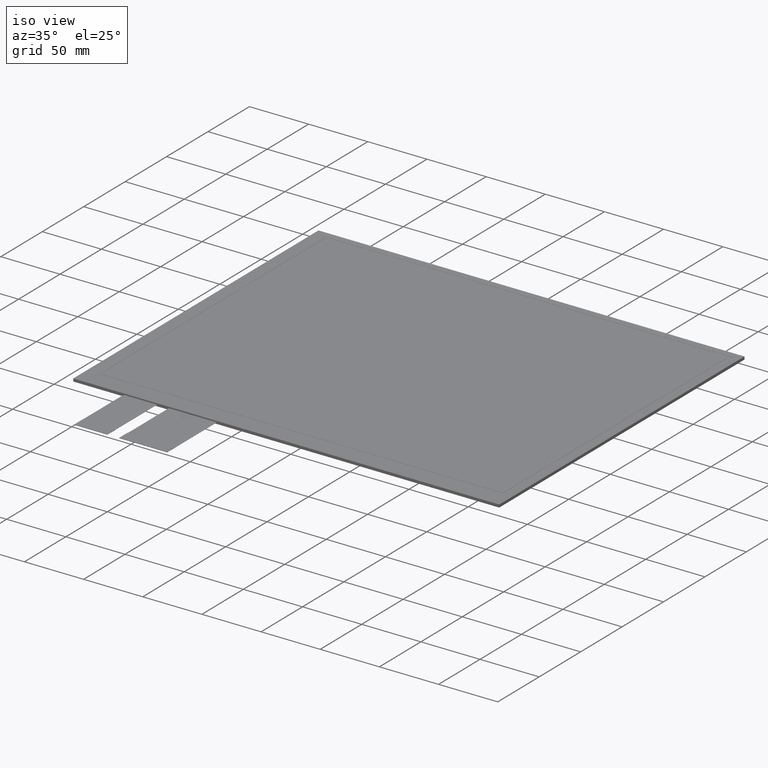
[diagram: clean part render]
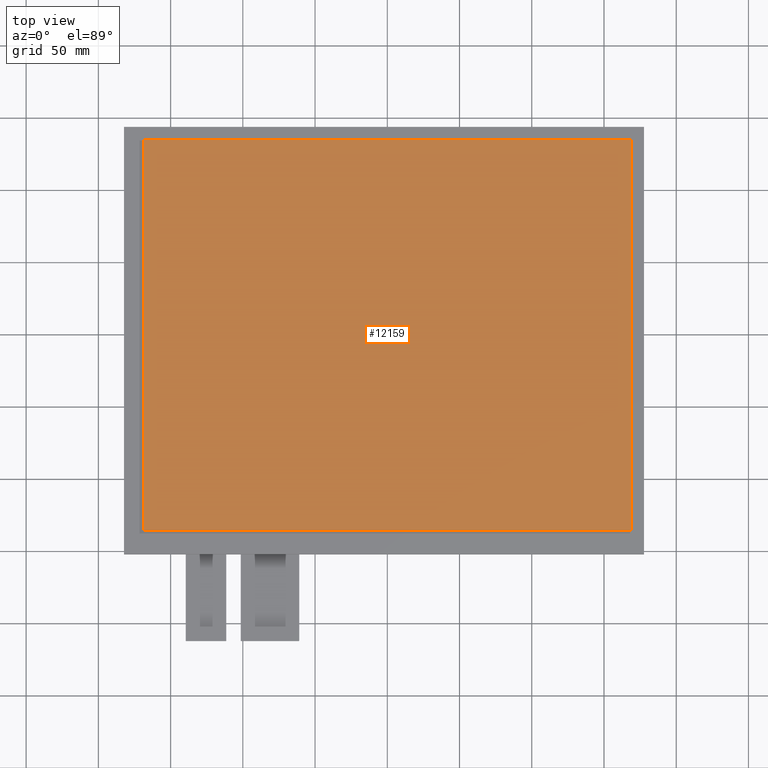
[diagram: tour spotlight — one face highlighted and labeled with its STEP entity id]
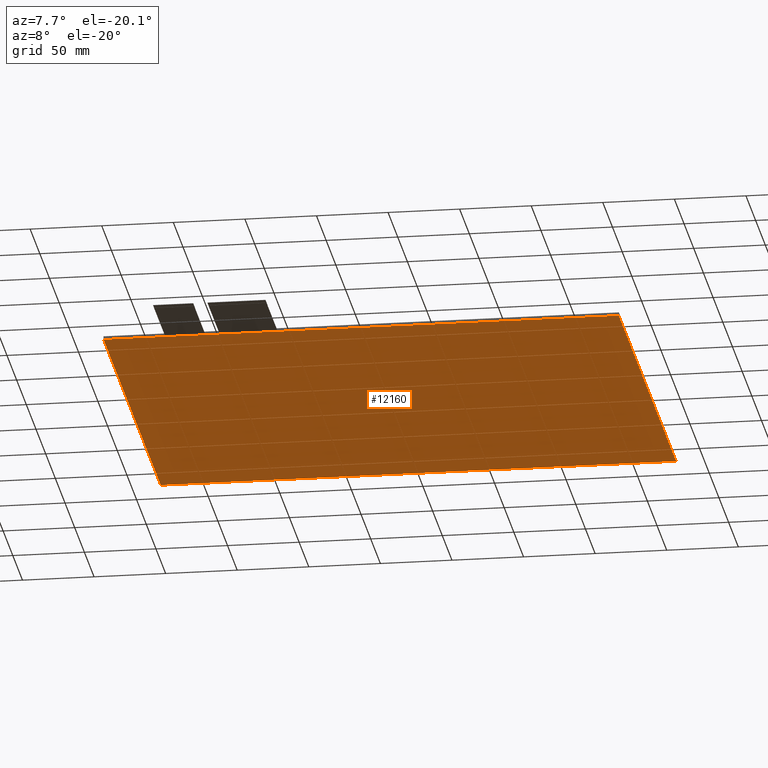
[diagram: tour spotlight — one face highlighted and labeled with its STEP entity id]
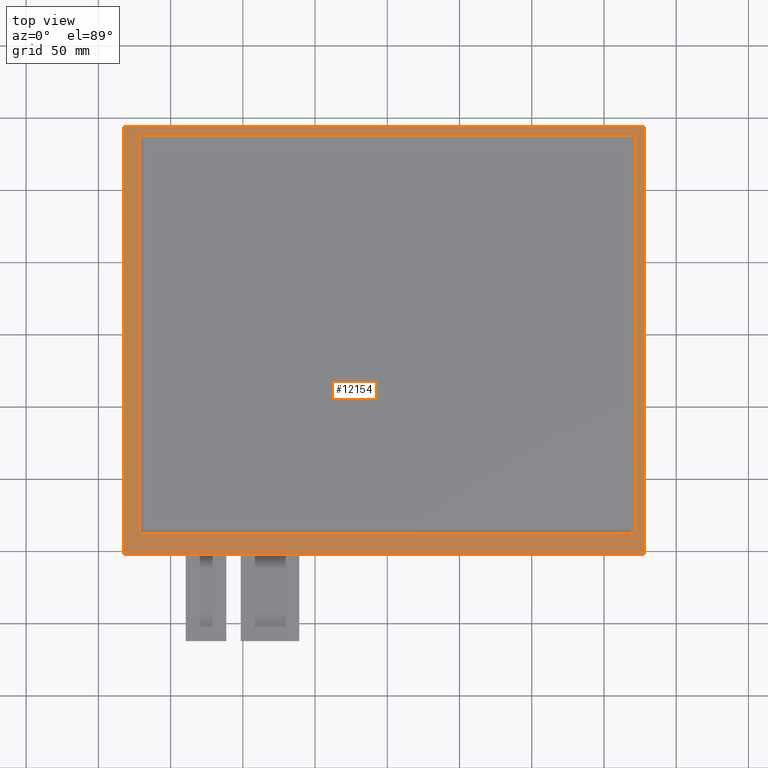
[diagram: tour spotlight — one face highlighted and labeled with its STEP entity id]
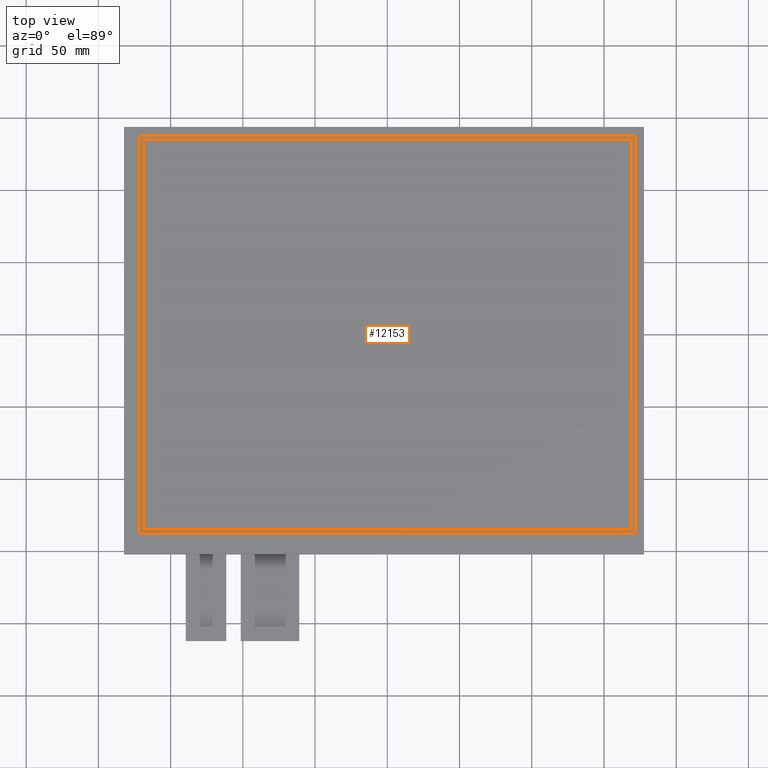
[diagram: tour spotlight — one face highlighted and labeled with its STEP entity id]
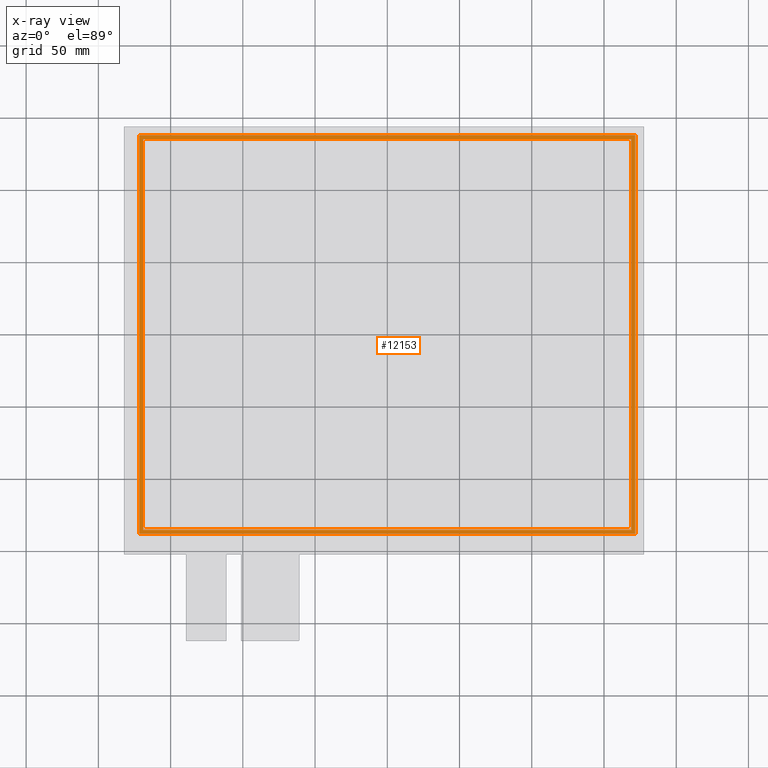
[diagram: x-ray of the same camera — body ghosted, this tour face saturated]
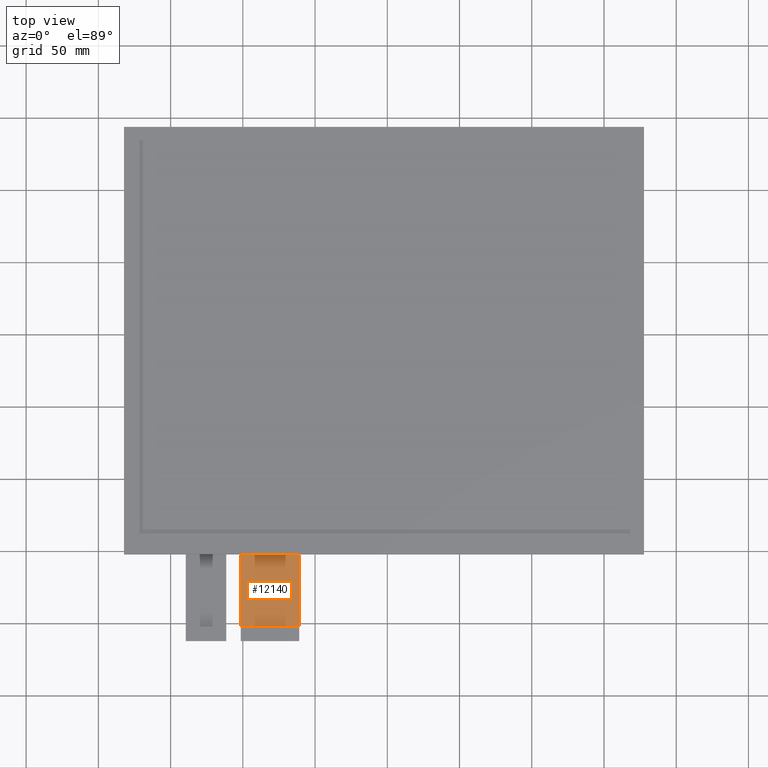
[diagram: tour spotlight — one face highlighted and labeled with its STEP entity id]
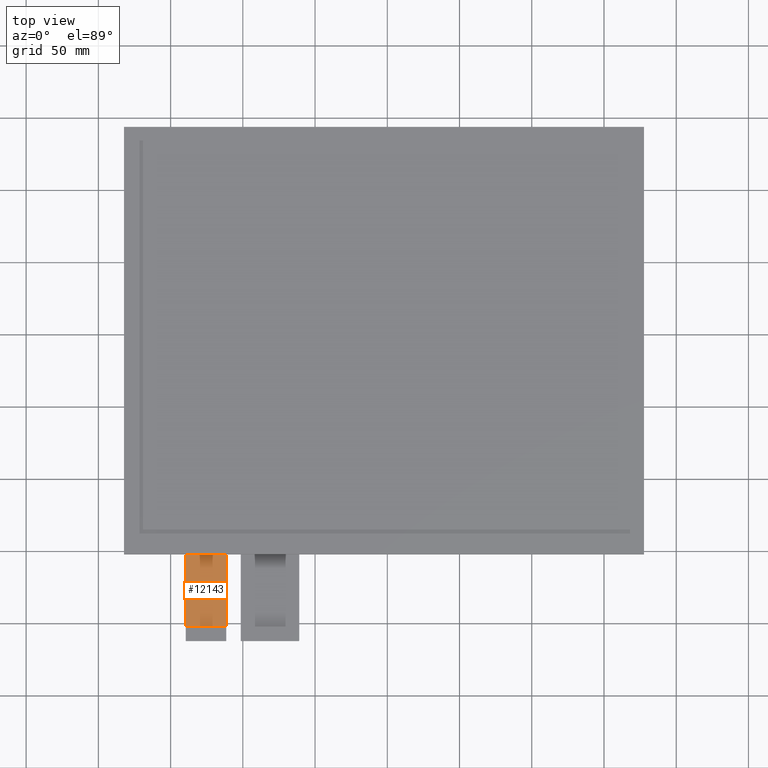
[diagram: tour spotlight — one face highlighted and labeled with its STEP entity id]
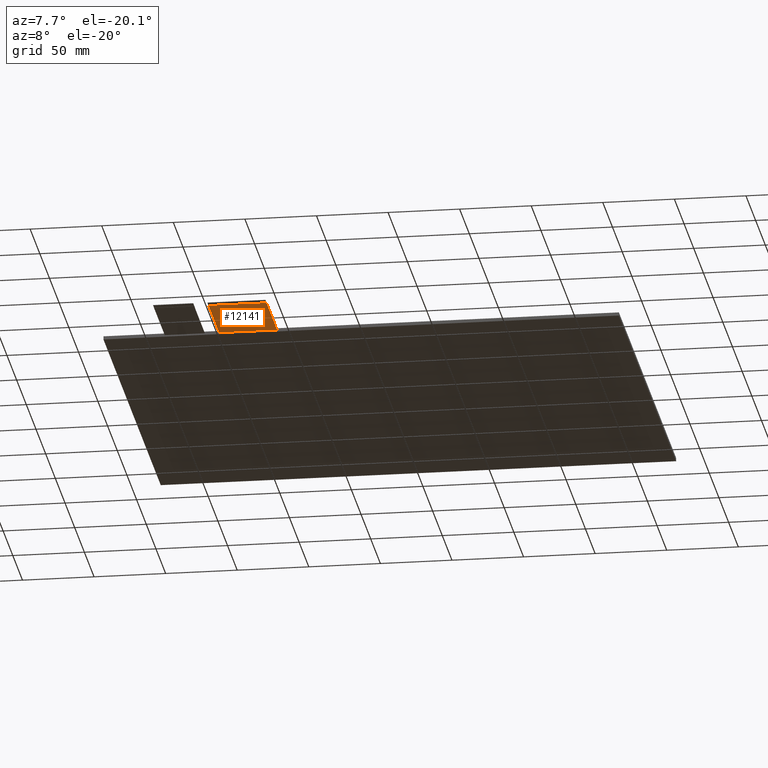
[diagram: tour spotlight — one face highlighted and labeled with its STEP entity id]
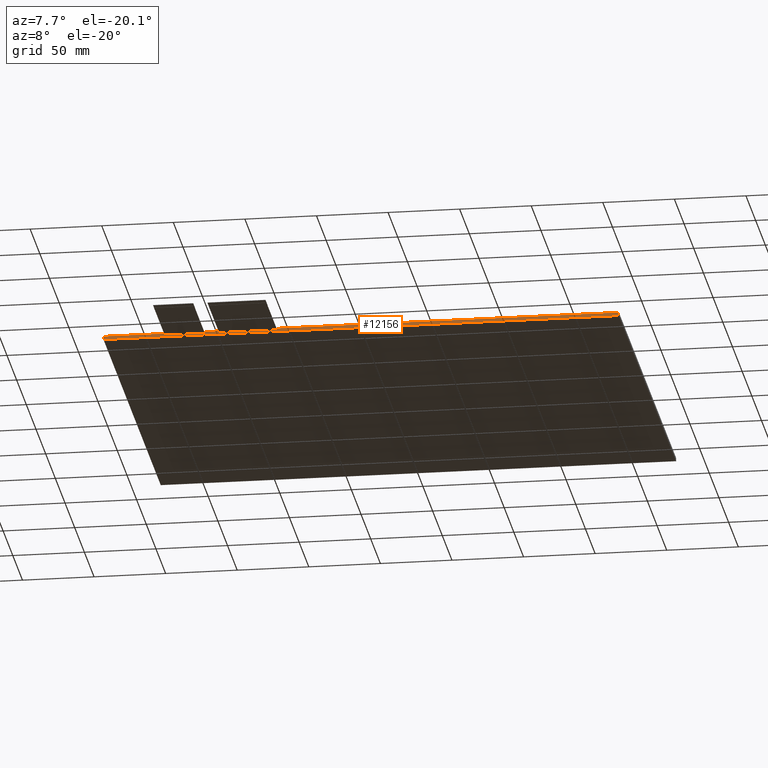
[diagram: tour spotlight — one face highlighted and labeled with its STEP entity id]
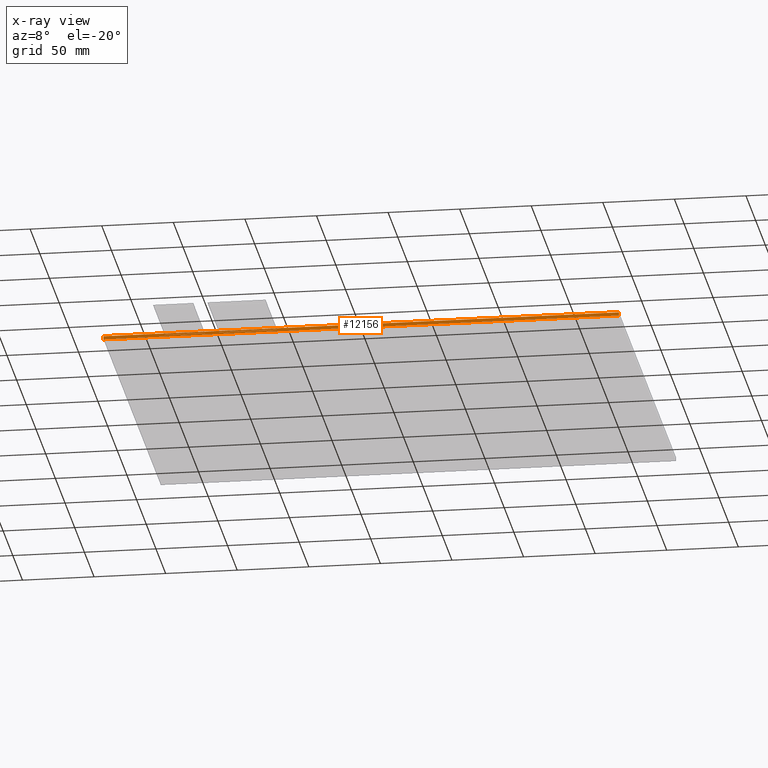
[diagram: x-ray of the same camera — body ghosted, this tour face saturated]
A machine part: a face-by-face anatomy tour. The part has 578 B-rep faces; the first image is the clean iso view, then the 8 largest visible faces are spotlighted one at a time (largest first), each with its STEP entity span.

Face 1 — top view, entity #12159. In plain terms, the highlighted planar face has unit normal (0, 0, 1).
Definition (entity closure, byte-faithful):
#701=PLANE('',#12765);
#1279=FACE_OUTER_BOUND('',#1861,.T.);
#1861=EDGE_LOOP('',(#11571,#11572,#11573,#11574));
#3535=LINE('',#19015,#5243);
#3539=LINE('',#19023,#5247);
#3542=LINE('',#19029,#5250);
#3545=LINE('',#19034,#5253);
#5243=VECTOR('',#15583,10.);
#5247=VECTOR('',#15589,10.);
#5250=VECTOR('',#15594,10.);
#5253=VECTOR('',#15599,10.);
#6407=VERTEX_POINT('',#19013);
#6408=VERTEX_POINT('',#19014);
#6411=VERTEX_POINT('',#19022);
#6413=VERTEX_POINT('',#19028);
#8111=EDGE_CURVE('',#6407,#6408,#3535,.T.);
#8115=EDGE_CURVE('',#6411,#6407,#3539,.T.);
#8118=EDGE_CURVE('',#6413,#6411,#3542,.T.);
#8121=EDGE_CURVE('',#6408,#6413,#3545,.T.);
#11571=ORIENTED_EDGE('',*,*,#8111,.T.);
#11572=ORIENTED_EDGE('',*,*,#8121,.T.);
#11573=ORIENTED_EDGE('',*,*,#8118,.T.);
#11574=ORIENTED_EDGE('',*,*,#8115,.T.);
#12159=ADVANCED_FACE('',(#1279),#701,.T.);
#12765=AXIS2_PLACEMENT_3D('',#19086,#15645,#15646);
#15583=DIRECTION('',(1.,0.,0.));
#15589=DIRECTION('',(0.,-1.,0.));
#15594=DIRECTION('',(-1.,0.,0.));
#15599=DIRECTION('',(0.,1.,0.));
#15645=DIRECTION('center_axis',(0.,0.,1.));
#15646=DIRECTION('ref_axis',(1.,0.,0.));
#19013=CARTESIAN_POINT('',(-169.,-135.2,0.));
#19014=CARTESIAN_POINT('',(169.,-135.2,0.));
#19015=CARTESIAN_POINT('',(-85.64,-135.2,0.));
#19022=CARTESIAN_POINT('',(-169.,135.2,0.));
#19023=CARTESIAN_POINT('',(-169.,65.525,0.));
#19028=CARTESIAN_POINT('',(169.,135.2,0.));
#19029=CARTESIAN_POINT('',(83.36,135.2,0.));
#19034=CARTESIAN_POINT('',(169.,-69.675,0.));
#19086=CARTESIAN_POINT('Origin',(-2.28000000000005,-4.14999999999997,0.));

Face 2 — auxiliary view, entity #12160. In plain terms, the highlighted planar face has unit normal (0, 0, -1).
Definition (entity closure, byte-faithful):
#702=PLANE('',#12766);
#1280=FACE_OUTER_BOUND('',#1862,.T.);
#1862=EDGE_LOOP('',(#11575,#11576,#11577,#11578));
#3564=LINE('',#19074,#5272);
#3566=LINE('',#19078,#5274);
#3568=LINE('',#19082,#5276);
#3570=LINE('',#19085,#5278);
#5272=VECTOR('',#15632,10.);
#5274=VECTOR('',#15636,10.);
#5276=VECTOR('',#15640,10.);
#5278=VECTOR('',#15644,10.);
#6427=VERTEX_POINT('',#19071);
#6428=VERTEX_POINT('',#19073);
#6429=VERTEX_POINT('',#19077);
#6430=VERTEX_POINT('',#19081);
#8140=EDGE_CURVE('',#6428,#6427,#3564,.T.);
#8142=EDGE_CURVE('',#6429,#6428,#3566,.T.);
#8144=EDGE_CURVE('',#6430,#6429,#3568,.T.);
#8146=EDGE_CURVE('',#6427,#6430,#3570,.T.);
#11575=ORIENTED_EDGE('',*,*,#8146,.T.);
#11576=ORIENTED_EDGE('',*,*,#8144,.T.);
#11577=ORIENTED_EDGE('',*,*,#8142,.T.);
#11578=ORIENTED_EDGE('',*,*,#8140,.T.);
#12160=ADVANCED_FACE('',(#1280),#702,.T.);
#12766=AXIS2_PLACEMENT_3D('',#19087,#15647,#15648);
#15632=DIRECTION('',(-2.40048221540574E-16,1.,0.));
#15636=DIRECTION('',(-1.,-9.86864910777917E-17,0.));
#15640=DIRECTION('',(1.20024110770287E-16,-1.,0.));
#15644=DIRECTION('',(1.,0.,0.));
#15647=DIRECTION('center_axis',(0.,0.,-1.));
#15648=DIRECTION('ref_axis',(-1.,0.,0.));
#19071=CARTESIAN_POINT('',(-182.28,143.85,-2.35));
#19073=CARTESIAN_POINT('',(-182.28,-152.15,-2.35));
#19074=CARTESIAN_POINT('',(-182.28,143.85,-2.35));
#19077=CARTESIAN_POINT('',(177.72,-152.15,-2.35));
#19078=CARTESIAN_POINT('',(-182.28,-152.15,-2.35));
#19081=CARTESIAN_POINT('',(177.72,143.85,-2.35));
#19082=CARTESIAN_POINT('',(177.72,-152.15,-2.35));
#19085=CARTESIAN_POINT('',(177.72,143.85,-2.35));
#19087=CARTESIAN_POINT('Origin',(-2.28000000000005,-4.14999999999997,-2.35));

Face 3 — top view, entity #12154. In plain terms, the highlighted planar face has unit normal (0, 0, 1).
Definition (entity closure, byte-faithful):
#126=FACE_BOUND('',#1854,.T.);
#696=PLANE('',#12760);
#1274=FACE_OUTER_BOUND('',#1853,.T.);
#1853=EDGE_LOOP('',(#11539,#11540,#11541,#11542));
#1854=EDGE_LOOP('',(#11543,#11544,#11545,#11546));
#3547=LINE('',#19039,#5255);
#3551=LINE('',#19047,#5259);
#3554=LINE('',#19053,#5262);
#3557=LINE('',#19058,#5265);
#3559=LINE('',#19064,#5267);
#3560=LINE('',#19066,#5268);
#3561=LINE('',#19068,#5269);
#3562=LINE('',#19069,#5270);
#5255=VECTOR('',#15603,10.);
#5259=VECTOR('',#15609,10.);
#5262=VECTOR('',#15614,10.);
#5265=VECTOR('',#15619,10.);
#5267=VECTOR('',#15625,10.);
#5268=VECTOR('',#15626,10.);
#5269=VECTOR('',#15627,10.);
#5270=VECTOR('',#15628,10.);
#6415=VERTEX_POINT('',#19037);
#6416=VERTEX_POINT('',#19038);
#6419=VERTEX_POINT('',#19046);
#6421=VERTEX_POINT('',#19052);
#6423=VERTEX_POINT('',#19062);
#6424=VERTEX_POINT('',#19063);
#6425=VERTEX_POINT('',#19065);
#6426=VERTEX_POINT('',#19067);
#8123=EDGE_CURVE('',#6415,#6416,#3547,.T.);
#8127=EDGE_CURVE('',#6419,#6415,#3551,.T.);
#8130=EDGE_CURVE('',#6421,#6419,#3554,.T.);
#8133=EDGE_CURVE('',#6416,#6421,#3557,.T.);
#8135=EDGE_CURVE('',#6423,#6424,#3559,.T.);
#8136=EDGE_CURVE('',#6424,#6425,#3560,.T.);
#8137=EDGE_CURVE('',#6425,#6426,#3561,.T.);
#8138=EDGE_CURVE('',#6426,#6423,#3562,.T.);
#11539=ORIENTED_EDGE('',*,*,#8135,.T.);
#11540=ORIENTED_EDGE('',*,*,#8136,.T.);
#11541=ORIENTED_EDGE('',*,*,#8137,.T.);
#11542=ORIENTED_EDGE('',*,*,#8138,.T.);
#11543=ORIENTED_EDGE('',*,*,#8123,.T.);
#11544=ORIENTED_EDGE('',*,*,#8133,.T.);
#11545=ORIENTED_EDGE('',*,*,#8130,.T.);
#11546=ORIENTED_EDGE('',*,*,#8127,.T.);
#12154=ADVANCED_FACE('',(#1274,#126),#696,.T.);
#12760=AXIS2_PLACEMENT_3D('',#19061,#15623,#15624);
#15603=DIRECTION('',(-2.5772315406605E-16,1.,0.));
#15609=DIRECTION('',(-1.,-1.55230717104595E-16,0.));
#15614=DIRECTION('',(0.,-1.,0.));
#15619=DIRECTION('',(1.,5.17435723681984E-17,0.));
#15623=DIRECTION('center_axis',(0.,0.,1.));
#15624=DIRECTION('ref_axis',(1.,0.,0.));
#15625=DIRECTION('',(-1.,0.,0.));
#15626=DIRECTION('',(2.40048221540574E-16,-1.,0.));
#15627=DIRECTION('',(1.,9.86864910777917E-17,0.));
#15628=DIRECTION('',(-1.20024110770287E-16,1.,0.));
#19037=CARTESIAN_POINT('',(-171.65,-137.85,0.));
#19038=CARTESIAN_POINT('',(-171.65,137.85,0.));
#19039=CARTESIAN_POINT('',(-171.65,-71.,0.));
#19046=CARTESIAN_POINT('',(171.65,-137.85,0.));
#19047=CARTESIAN_POINT('',(84.685,-137.85,0.));
#19052=CARTESIAN_POINT('',(171.65,137.85,0.));
#19053=CARTESIAN_POINT('',(171.65,66.85,0.));
#19058=CARTESIAN_POINT('',(-86.9650000000001,137.85,0.));
#19061=CARTESIAN_POINT('Origin',(-2.28000000000005,-4.14999999999997,0.));
#19062=CARTESIAN_POINT('',(177.72,143.85,0.));
#19063=CARTESIAN_POINT('',(-182.28,143.85,0.));
#19064=CARTESIAN_POINT('',(177.72,143.85,0.));
#19065=CARTESIAN_POINT('',(-182.28,-152.15,0.));
#19066=CARTESIAN_POINT('',(-182.28,143.85,0.));
#19067=CARTESIAN_POINT('',(177.72,-152.15,0.));
#19068=CARTESIAN_POINT('',(-182.28,-152.15,0.));
#19069=CARTESIAN_POINT('',(177.72,-152.15,0.));

Face 4 — top view, entity #12153. An x-ray twin of the same camera follows (body ghosted, this face saturated) — the face is partly hidden behind the body. In plain terms, the highlighted planar face has unit normal (0, 0, -1).
Definition (entity closure, byte-faithful):
#125=FACE_BOUND('',#1852,.T.);
#695=PLANE('',#12759);
#1273=FACE_OUTER_BOUND('',#1851,.T.);
#1851=EDGE_LOOP('',(#11531,#11532,#11533,#11534));
#1852=EDGE_LOOP('',(#11535,#11536,#11537,#11538));
#3537=LINE('',#19019,#5245);
#3541=LINE('',#19026,#5249);
#3544=LINE('',#19032,#5252);
#3546=LINE('',#19035,#5254);
#3549=LINE('',#19043,#5257);
#3553=LINE('',#19050,#5261);
#3556=LINE('',#19056,#5264);
#3558=LINE('',#19059,#5266);
#5245=VECTOR('',#15585,10.);
#5249=VECTOR('',#15591,10.);
#5252=VECTOR('',#15596,10.);
#5254=VECTOR('',#15600,10.);
#5257=VECTOR('',#15605,10.);
#5261=VECTOR('',#15611,10.);
#5264=VECTOR('',#15616,10.);
#5266=VECTOR('',#15620,10.);
#6409=VERTEX_POINT('',#19016);
#6410=VERTEX_POINT('',#19018);
#6412=VERTEX_POINT('',#19024);
#6414=VERTEX_POINT('',#19030);
#6417=VERTEX_POINT('',#19040);
#6418=VERTEX_POINT('',#19042);
#6420=VERTEX_POINT('',#19048);
#6422=VERTEX_POINT('',#19054);
#8113=EDGE_CURVE('',#6409,#6410,#3537,.T.);
#8117=EDGE_CURVE('',#6412,#6409,#3541,.T.);
#8120=EDGE_CURVE('',#6414,#6412,#3544,.T.);
#8122=EDGE_CURVE('',#6410,#6414,#3546,.T.);
#8125=EDGE_CURVE('',#6417,#6418,#3549,.T.);
#8129=EDGE_CURVE('',#6420,#6417,#3553,.T.);
#8132=EDGE_CURVE('',#6422,#6420,#3556,.T.);
#8134=EDGE_CURVE('',#6418,#6422,#3558,.T.);
#11531=ORIENTED_EDGE('',*,*,#8134,.F.);
#11532=ORIENTED_EDGE('',*,*,#8125,.F.);
#11533=ORIENTED_EDGE('',*,*,#8129,.F.);
#11534=ORIENTED_EDGE('',*,*,#8132,.F.);
#11535=ORIENTED_EDGE('',*,*,#8122,.F.);
#11536=ORIENTED_EDGE('',*,*,#8113,.F.);
#11537=ORIENTED_EDGE('',*,*,#8117,.F.);
#11538=ORIENTED_EDGE('',*,*,#8120,.F.);
#12153=ADVANCED_FACE('',(#1273,#125),#695,.F.);
#12759=AXIS2_PLACEMENT_3D('',#19060,#15621,#15622);
#15585=DIRECTION('',(1.,0.,0.));
#15591=DIRECTION('',(0.,-1.,0.));
#15596=DIRECTION('',(-1.,0.,0.));
#15600=DIRECTION('',(0.,1.,0.));
#15605=DIRECTION('',(-2.5772315406605E-16,1.,0.));
#15611=DIRECTION('',(-1.,-1.55230717104595E-16,0.));
#15616=DIRECTION('',(0.,-1.,0.));
#15620=DIRECTION('',(1.,5.17435723681984E-17,0.));
#15621=DIRECTION('center_axis',(0.,0.,-1.));
#15622=DIRECTION('ref_axis',(-1.,0.,0.));
#19016=CARTESIAN_POINT('',(-169.,-135.2,-0.1));
#19018=CARTESIAN_POINT('',(169.,-135.2,-0.1));
#19019=CARTESIAN_POINT('',(169.,-135.2,-0.1));
#19024=CARTESIAN_POINT('',(-169.,135.2,-0.1));
#19026=CARTESIAN_POINT('',(-169.,-135.2,-0.1));
#19030=CARTESIAN_POINT('',(169.,135.2,-0.1));
#19032=CARTESIAN_POINT('',(-169.,135.2,-0.1));
#19035=CARTESIAN_POINT('',(169.,135.2,-0.1));
#19040=CARTESIAN_POINT('',(-171.65,-137.85,-0.1));
#19042=CARTESIAN_POINT('',(-171.65,137.85,-0.1));
#19043=CARTESIAN_POINT('',(-171.65,137.85,-0.1));
#19048=CARTESIAN_POINT('',(171.65,-137.85,-0.1));
#19050=CARTESIAN_POINT('',(-171.65,-137.85,-0.1));
#19054=CARTESIAN_POINT('',(171.65,137.85,-0.1));
#19056=CARTESIAN_POINT('',(171.65,-137.85,-0.1));
#19059=CARTESIAN_POINT('',(171.65,137.85,-0.1));
#19060=CARTESIAN_POINT('Origin',(-3.5527136788005E-14,1.77635683940025E-14,
-0.1));

Face 5 — top view, entity #12140. In plain terms, the highlighted planar face has unit normal (0, 0, 1).
Definition (entity closure, byte-faithful):
#682=PLANE('',#12746);
#1260=FACE_OUTER_BOUND('',#1838,.T.);
#1838=EDGE_LOOP('',(#11475,#11476,#11477,#11478));
#3514=LINE('',#18972,#5222);
#3517=LINE('',#18978,#5225);
#3527=LINE('',#18997,#5235);
#3528=LINE('',#18999,#5236);
#5222=VECTOR('',#15540,10.);
#5225=VECTOR('',#15545,10.);
#5235=VECTOR('',#15563,10.);
#5236=VECTOR('',#15566,10.);
#6396=VERTEX_POINT('',#18969);
#6397=VERTEX_POINT('',#18971);
#6399=VERTEX_POINT('',#18977);
#6404=VERTEX_POINT('',#18995);
#8090=EDGE_CURVE('',#6397,#6396,#3514,.T.);
#8093=EDGE_CURVE('',#6396,#6399,#3517,.T.);
#8103=EDGE_CURVE('',#6399,#6404,#3527,.T.);
#8104=EDGE_CURVE('',#6397,#6404,#3528,.T.);
#11475=ORIENTED_EDGE('',*,*,#8093,.T.);
#11476=ORIENTED_EDGE('',*,*,#8103,.T.);
#11477=ORIENTED_EDGE('',*,*,#8104,.F.);
#11478=ORIENTED_EDGE('',*,*,#8090,.T.);
#12140=ADVANCED_FACE('',(#1260),#682,.T.);
#12746=AXIS2_PLACEMENT_3D('',#18998,#15564,#15565);
#15540=DIRECTION('',(2.96059473233375E-16,-1.,0.));
#15545=DIRECTION('',(1.,0.,0.));
#15563=DIRECTION('',(1.03620815631681E-15,1.,0.));
#15564=DIRECTION('center_axis',(0.,0.,1.));
#15565=DIRECTION('ref_axis',(1.,0.,0.));
#15566=DIRECTION('',(1.,9.86864910777917E-17,0.));
#18969=CARTESIAN_POINT('',(-101.48,-202.15,-1.1));
#18971=CARTESIAN_POINT('',(-101.48,-152.15,-1.1));
#18972=CARTESIAN_POINT('',(-101.48,-152.15,-1.1));
#18977=CARTESIAN_POINT('',(-60.9799999999999,-202.15,-1.1));
#18978=CARTESIAN_POINT('',(-71.1049999999999,-202.15,-1.1));
#18995=CARTESIAN_POINT('',(-60.9799999999998,-152.15,-1.1));
#18997=CARTESIAN_POINT('',(-60.9799999999999,-212.15,-1.1));
#18998=CARTESIAN_POINT('Origin',(-81.2299999999999,-182.15,-1.1));
#18999=CARTESIAN_POINT('',(48.2450000000001,-152.15,-1.1));

Face 6 — top view, entity #12143. In plain terms, the highlighted planar face has unit normal (0, 0, 1).
Definition (entity closure, byte-faithful):
#685=PLANE('',#12749);
#1263=FACE_OUTER_BOUND('',#1841,.T.);
#1841=EDGE_LOOP('',(#11491,#11492,#11493,#11494));
#3506=LINE('',#18956,#5214);
#3521=LINE('',#18986,#5229);
#3532=LINE('',#19007,#5240);
#3533=LINE('',#19009,#5241);
#5214=VECTOR('',#15528,10.);
#5229=VECTOR('',#15553,10.);
#5240=VECTOR('',#15574,10.);
#5241=VECTOR('',#15577,10.);
#6390=VERTEX_POINT('',#18953);
#6391=VERTEX_POINT('',#18955);
#6401=VERTEX_POINT('',#18985);
#6406=VERTEX_POINT('',#19005);
#8082=EDGE_CURVE('',#6391,#6390,#3506,.T.);
#8097=EDGE_CURVE('',#6390,#6401,#3521,.T.);
#8108=EDGE_CURVE('',#6401,#6406,#3532,.T.);
#8109=EDGE_CURVE('',#6391,#6406,#3533,.T.);
#11491=ORIENTED_EDGE('',*,*,#8097,.T.);
#11492=ORIENTED_EDGE('',*,*,#8108,.T.);
#11493=ORIENTED_EDGE('',*,*,#8109,.F.);
#11494=ORIENTED_EDGE('',*,*,#8082,.T.);
#12143=ADVANCED_FACE('',(#1263),#685,.T.);
#12749=AXIS2_PLACEMENT_3D('',#19008,#15575,#15576);
#15528=DIRECTION('',(0.,-1.,0.));
#15553=DIRECTION('',(1.,0.,0.));
#15574=DIRECTION('',(-2.96059473233375E-16,1.,0.));
#15575=DIRECTION('center_axis',(0.,0.,1.));
#15576=DIRECTION('ref_axis',(1.,0.,0.));
#15577=DIRECTION('',(1.,9.86864910777917E-17,0.));
#18953=CARTESIAN_POINT('',(-139.48,-202.15,-1.1));
#18955=CARTESIAN_POINT('',(-139.48,-152.15,-1.1));
#18956=CARTESIAN_POINT('',(-139.48,-152.15,-1.1));
#18985=CARTESIAN_POINT('',(-111.48,-202.15,-1.1));
#18986=CARTESIAN_POINT('',(-118.48,-202.15,-1.1));
#19005=CARTESIAN_POINT('',(-111.48,-152.15,-1.1));
#19007=CARTESIAN_POINT('',(-111.48,-212.15,-1.1));
#19008=CARTESIAN_POINT('Origin',(-125.48,-182.15,-1.1));
#19009=CARTESIAN_POINT('',(26.12,-152.15,-1.1));

Face 7 — auxiliary view, entity #12141. In plain terms, the highlighted planar face has unit normal (0, 0, -1).
Definition (entity closure, byte-faithful):
#683=PLANE('',#12747);
#1261=FACE_OUTER_BOUND('',#1839,.T.);
#1839=EDGE_LOOP('',(#11479,#11480,#11481,#11482));
#3510=LINE('',#18964,#5218);
#3516=LINE('',#18975,#5224);
#3525=LINE('',#18994,#5233);
#3529=LINE('',#19001,#5237);
#5218=VECTOR('',#15534,10.);
#5224=VECTOR('',#15542,10.);
#5233=VECTOR('',#15561,10.);
#5237=VECTOR('',#15569,10.);
#6393=VERTEX_POINT('',#18961);
#6394=VERTEX_POINT('',#18963);
#6398=VERTEX_POINT('',#18973);
#6403=VERTEX_POINT('',#18993);
#8086=EDGE_CURVE('',#6394,#6393,#3510,.T.);
#8092=EDGE_CURVE('',#6393,#6398,#3516,.T.);
#8101=EDGE_CURVE('',#6403,#6394,#3525,.T.);
#8105=EDGE_CURVE('',#6403,#6398,#3529,.T.);
#11479=ORIENTED_EDGE('',*,*,#8086,.T.);
#11480=ORIENTED_EDGE('',*,*,#8092,.T.);
#11481=ORIENTED_EDGE('',*,*,#8105,.F.);
#11482=ORIENTED_EDGE('',*,*,#8101,.T.);
#12141=ADVANCED_FACE('',(#1261),#683,.T.);
#12747=AXIS2_PLACEMENT_3D('',#19000,#15567,#15568);
#15534=DIRECTION('',(-1.,0.,0.));
#15542=DIRECTION('',(-2.96059473233375E-16,1.,0.));
#15561=DIRECTION('',(-1.03620815631681E-15,-1.,0.));
#15567=DIRECTION('center_axis',(0.,0.,-1.));
#15568=DIRECTION('ref_axis',(-1.,0.,0.));
#15569=DIRECTION('',(-1.,-9.86864910777917E-17,0.));
#18961=CARTESIAN_POINT('',(-101.48,-207.15,-1.2));
#18963=CARTESIAN_POINT('',(-60.9799999999999,-207.15,-1.2));
#18964=CARTESIAN_POINT('',(-71.1049999999999,-207.15,-1.2));
#18973=CARTESIAN_POINT('',(-101.48,-152.15,-1.2));
#18975=CARTESIAN_POINT('',(-101.48,-152.15,-1.2));
#18993=CARTESIAN_POINT('',(-60.9799999999998,-152.15,-1.2));
#18994=CARTESIAN_POINT('',(-60.9799999999999,-212.15,-1.2));
#19000=CARTESIAN_POINT('Origin',(-81.2299999999999,-182.15,-1.2));
#19001=CARTESIAN_POINT('',(48.2450000000001,-152.15,-1.2));

Face 8 — auxiliary view, entity #12156. An x-ray twin of the same camera follows (body ghosted, this face saturated) — the face is partly hidden behind the body. In plain terms, the highlighted planar face has unit normal (0, -1, 0).
Definition (entity closure, byte-faithful):
#127=FACE_BOUND('',#1857,.T.);
#128=FACE_BOUND('',#1858,.T.);
#698=PLANE('',#12762);
#1276=FACE_OUTER_BOUND('',#1856,.T.);
#1856=EDGE_LOOP('',(#11551,#11552,#11553,#11554));
#1857=EDGE_LOOP('',(#11555,#11556,#11557,#11558));
#1858=EDGE_LOOP('',(#11559,#11560,#11561,#11562));
#3507=LINE('',#18958,#5215);
#3515=LINE('',#18974,#5223);
#3526=LINE('',#18996,#5234);
#3528=LINE('',#18999,#5236);
#3529=LINE('',#19001,#5237);
#3531=LINE('',#19006,#5239);
#3533=LINE('',#19009,#5241);
#3534=LINE('',#19011,#5242);
#3561=LINE('',#19068,#5269);
#3565=LINE('',#19075,#5273);
#3566=LINE('',#19078,#5274);
#3567=LINE('',#19079,#5275);
#5215=VECTOR('',#15529,10.);
#5223=VECTOR('',#15541,10.);
#5234=VECTOR('',#15562,10.);
#5236=VECTOR('',#15566,10.);
#5237=VECTOR('',#15569,10.);
#5239=VECTOR('',#15573,10.);
#5241=VECTOR('',#15577,10.);
#5242=VECTOR('',#15580,10.);
#5269=VECTOR('',#15627,10.);
#5273=VECTOR('',#15633,10.);
#5274=VECTOR('',#15636,10.);
#5275=VECTOR('',#15637,10.);
#6391=VERTEX_POINT('',#18955);
#6392=VERTEX_POINT('',#18957);
#6397=VERTEX_POINT('',#18971);
#6398=VERTEX_POINT('',#18973);
#6403=VERTEX_POINT('',#18993);
#6404=VERTEX_POINT('',#18995);
#6405=VERTEX_POINT('',#19003);
#6406=VERTEX_POINT('',#19005);
#6425=VERTEX_POINT('',#19065);
#6426=VERTEX_POINT('',#19067);
#6428=VERTEX_POINT('',#19073);
#6429=VERTEX_POINT('',#19077);
#8083=EDGE_CURVE('',#6392,#6391,#3507,.T.);
#8091=EDGE_CURVE('',#6398,#6397,#3515,.T.);
#8102=EDGE_CURVE('',#6404,#6403,#3526,.T.);
#8104=EDGE_CURVE('',#6397,#6404,#3528,.T.);
#8105=EDGE_CURVE('',#6403,#6398,#3529,.T.);
#8107=EDGE_CURVE('',#6406,#6405,#3531,.T.);
#8109=EDGE_CURVE('',#6391,#6406,#3533,.T.);
#8110=EDGE_CURVE('',#6405,#6392,#3534,.T.);
#8137=EDGE_CURVE('',#6425,#6426,#3561,.T.);
#8141=EDGE_CURVE('',#6425,#6428,#3565,.T.);
#8142=EDGE_CURVE('',#6429,#6428,#3566,.T.);
#8143=EDGE_CURVE('',#6426,#6429,#3567,.T.);
#11551=ORIENTED_EDGE('',*,*,#8137,.F.);
#11552=ORIENTED_EDGE('',*,*,#8141,.T.);
#11553=ORIENTED_EDGE('',*,*,#8142,.F.);
#11554=ORIENTED_EDGE('',*,*,#8143,.F.);
#11555=ORIENTED_EDGE('',*,*,#8102,.T.);
#11556=ORIENTED_EDGE('',*,*,#8105,.T.);
#11557=ORIENTED_EDGE('',*,*,#8091,.T.);
#11558=ORIENTED_EDGE('',*,*,#8104,.T.);
#11559=ORIENTED_EDGE('',*,*,#8107,.T.);
#11560=ORIENTED_EDGE('',*,*,#8110,.T.);
#11561=ORIENTED_EDGE('',*,*,#8083,.T.);
#11562=ORIENTED_EDGE('',*,*,#8109,.T.);
#12156=ADVANCED_FACE('',(#1276,#127,#128),#698,.T.);
#12762=AXIS2_PLACEMENT_3D('',#19076,#15634,#15635);
#15529=DIRECTION('',(0.,0.,1.));
#15541=DIRECTION('',(0.,0.,1.));
#15562=DIRECTION('',(0.,0.,-1.));
#15566=DIRECTION('',(1.,9.86864910777917E-17,0.));
#15569=DIRECTION('',(-1.,-9.86864910777917E-17,0.));
#15573=DIRECTION('',(0.,0.,-1.));
#15577=DIRECTION('',(1.,9.86864910777917E-17,0.));
#15580=DIRECTION('',(-1.,-9.86864910777917E-17,0.));
#15627=DIRECTION('',(1.,9.86864910777917E-17,0.));
#15633=DIRECTION('',(0.,0.,-1.));
#15634=DIRECTION('center_axis',(9.86864910777917E-17,-1.,0.));
#15635=DIRECTION('ref_axis',(-1.,-9.86864910777917E-17,0.));
#15636=DIRECTION('',(-1.,-9.86864910777917E-17,0.));
#15637=DIRECTION('',(0.,0.,-1.));
#18955=CARTESIAN_POINT('',(-139.48,-152.15,-1.1));
#18957=CARTESIAN_POINT('',(-139.48,-152.15,-1.2));
#18958=CARTESIAN_POINT('',(-139.48,-152.15,-0.55));
#18971=CARTESIAN_POINT('',(-101.48,-152.15,-1.1));
#18973=CARTESIAN_POINT('',(-101.48,-152.15,-1.2));
#18974=CARTESIAN_POINT('',(-101.48,-152.15,-0.55));
#18993=CARTESIAN_POINT('',(-60.9799999999998,-152.15,-1.2));
#18995=CARTESIAN_POINT('',(-60.9799999999998,-152.15,-1.1));
#18996=CARTESIAN_POINT('',(-60.9799999999998,-152.15,-0.55));
#18999=CARTESIAN_POINT('',(48.2450000000001,-152.15,-1.1));
#19001=CARTESIAN_POINT('',(48.2450000000001,-152.15,-1.2));
#19003=CARTESIAN_POINT('',(-111.48,-152.15,-1.2));
#19005=CARTESIAN_POINT('',(-111.48,-152.15,-1.1));
#19006=CARTESIAN_POINT('',(-111.48,-152.15,-0.55));
#19009=CARTESIAN_POINT('',(26.12,-152.15,-1.1));
#19011=CARTESIAN_POINT('',(26.12,-152.15,-1.2));
#19065=CARTESIAN_POINT('',(-182.28,-152.15,0.));
#19067=CARTESIAN_POINT('',(177.72,-152.15,0.));
#19068=CARTESIAN_POINT('',(-182.28,-152.15,0.));
#19073=CARTESIAN_POINT('',(-182.28,-152.15,-2.35));
#19075=CARTESIAN_POINT('',(-182.28,-152.15,0.));
#19076=CARTESIAN_POINT('Origin',(177.72,-152.15,0.));
#19077=CARTESIAN_POINT('',(177.72,-152.15,-2.35));
#19078=CARTESIAN_POINT('',(-182.28,-152.15,-2.35));
#19079=CARTESIAN_POINT('',(177.72,-152.15,0.));